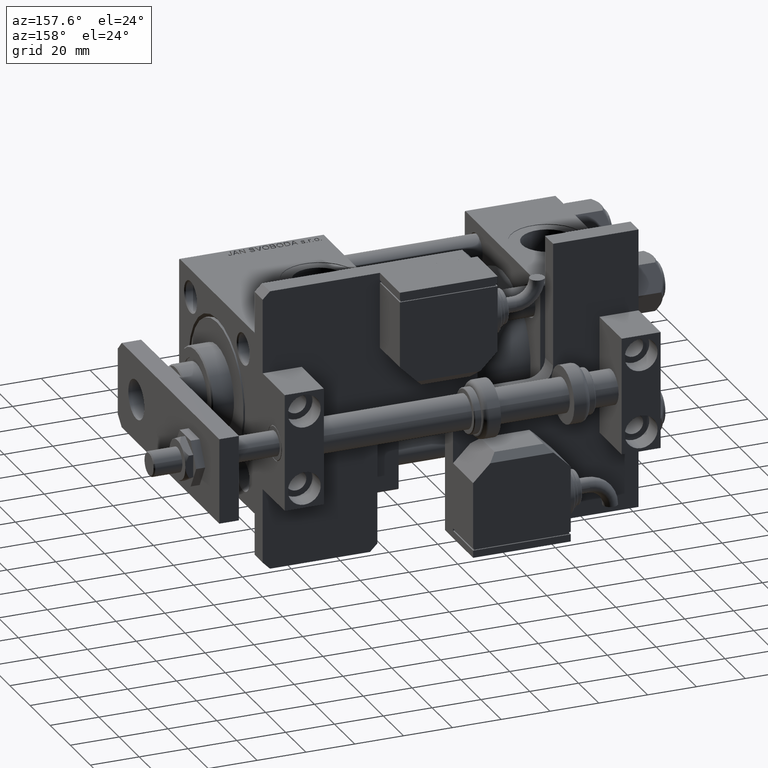
[diagram: clean part render]
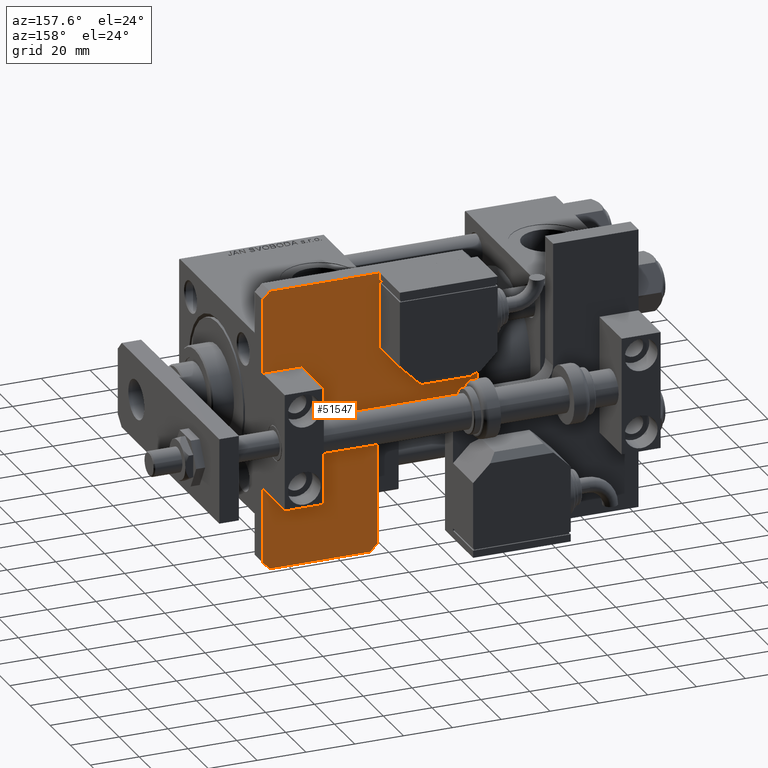
[diagram: same view with one face highlighted and labeled with its STEP entity id]
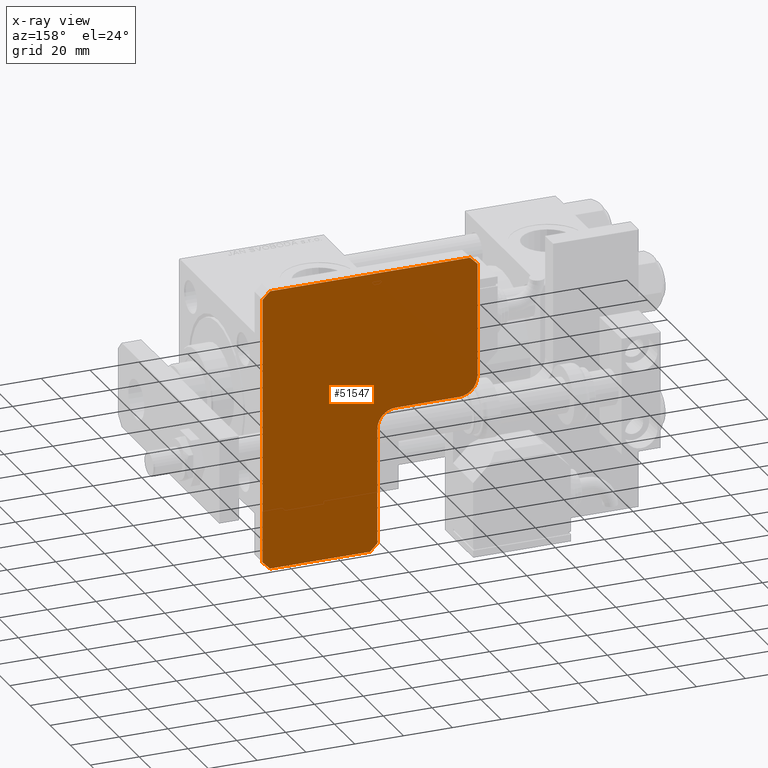
[diagram: x-ray of the same camera — body ghosted, the highlighted face saturated]
A machine part, auxiliary view. The second image highlights one B-rep face of the part: STEP entity #51547.
The next image is the same camera in x-ray: the body ghosted, the highlighted face saturated — about 0% of this face is hidden behind the body in this view.
In plain terms, the highlighted planar face has unit normal (0, 1, 0).
Its self-contained STEP definition (entity closure, byte-faithful):
#1418 = CARTESIAN_POINT ( 'NONE',  ( 0.000000000000000000, 0.000000000000000000, 8.000000000000000000 ) ) ;
#1651 = EDGE_CURVE ( 'NONE', #42852, #24377, #7091, .T. ) ;
#2711 = VECTOR ( 'NONE', #29975, 1000.000000000000114 ) ;
#2737 = CARTESIAN_POINT ( 'NONE',  ( 56.99999999999999289, 88.00000000000000000, 8.000000000000000000 ) ) ;
#3937 = VERTEX_POINT ( 'NONE', #19748 ) ;
#4610 = AXIS2_PLACEMENT_3D ( 'NONE', #55560, #47346, #34662 ) ;
#5080 = VECTOR ( 'NONE', #15692, 1000.000000000000114 ) ;
#7091 = LINE ( 'NONE', #41584, #17776 ) ;
#7131 = VERTEX_POINT ( 'NONE', #30914 ) ;
#7385 = CARTESIAN_POINT ( 'NONE',  ( 114.9999999999999858, 0.000000000000000000, 8.000000000000000000 ) ) ;
#8176 = ORIENTED_EDGE ( 'NONE', *, *, #44047, .T. ) ;
#8759 = DIRECTION ( 'NONE',  ( 1.000000000000000000, 0.000000000000000000, 0.000000000000000000 ) ) ;
#9207 = EDGE_CURVE ( 'NONE', #24204, #42852, #30246, .T. ) ;
#9824 = VECTOR ( 'NONE', #20006, 1000.000000000000000 ) ;
#10546 = EDGE_CURVE ( 'NONE', #19199, #12549, #30460, .T. ) ;
#11227 = VECTOR ( 'NONE', #40761, 1000.000000000000000 ) ;
#11856 = VECTOR ( 'NONE', #22700, 1000.000000000000114 ) ;
#12549 = VERTEX_POINT ( 'NONE', #27171 ) ;
#12624 = CARTESIAN_POINT ( 'NONE',  ( 114.9999999999999858, 43.99999999999998579, 8.000000000000000000 ) ) ;
#13002 = CARTESIAN_POINT ( 'NONE',  ( 0.000000000000000000, 0.000000000000000000, 8.000000000000000000 ) ) ;
#13362 = LINE ( 'NONE', #43056, #54329 ) ;
#13747 = DIRECTION ( 'NONE',  ( -1.000000000000000000, 0.000000000000000000, 0.000000000000000000 ) ) ;
#14166 = EDGE_CURVE ( 'NONE', #37332, #24204, #23973, .T. ) ;
#14400 = EDGE_CURVE ( 'NONE', #24377, #20289, #17413, .T. ) ;
#14440 = DIRECTION ( 'NONE',  ( 1.000000000000000000, 0.000000000000000000, -0.000000000000000000 ) ) ;
#14756 = LINE ( 'NONE', #35146, #11856 ) ;
#15692 = DIRECTION ( 'NONE',  ( -0.7071067811865441310, 0.7071067811865507924, -0.000000000000000000 ) ) ;
#17413 = LINE ( 'NONE', #34672, #40585 ) ;
#17761 = CARTESIAN_POINT ( 'NONE',  ( 2.999999999999975131, 0.000000000000000000, 8.000000000000000000 ) ) ;
#17776 = VECTOR ( 'NONE', #54571, 1000.000000000000000 ) ;
#18160 = ORIENTED_EDGE ( 'NONE', *, *, #9207, .T. ) ;
#18677 = EDGE_CURVE ( 'NONE', #7131, #3937, #14756, .T. ) ;
#19199 = VERTEX_POINT ( 'NONE', #21108 ) ;
#19203 = EDGE_CURVE ( 'NONE', #12549, #23234, #39848, .T. ) ;
#19566 = EDGE_CURVE ( 'NONE', #23234, #55767, #13362, .T. ) ;
#19748 = CARTESIAN_POINT ( 'NONE',  ( 114.9999999999999858, 2.999999999999975131, 8.000000000000000000 ) ) ;
#20006 = DIRECTION ( 'NONE',  ( -1.000000000000000000, 0.000000000000000000, 0.000000000000000000 ) ) ;
#20289 = VERTEX_POINT ( 'NONE', #17761 ) ;
#20957 = ORIENTED_EDGE ( 'NONE', *, *, #14400, .T. ) ;
#21108 = CARTESIAN_POINT ( 'NONE',  ( 112.0000000000000142, 46.99999999999998579, 8.000000000000000000 ) ) ;
#21515 = LINE ( 'NONE', #13002, #22938 ) ;
#22485 = AXIS2_PLACEMENT_3D ( 'NONE', #1418, #53162, #14440 ) ;
#22700 = DIRECTION ( 'NONE',  ( 0.7071067811865507924, 0.7071067811865441310, -0.000000000000000000 ) ) ;
#22938 = VECTOR ( 'NONE', #8759, 1000.000000000000000 ) ;
#23234 = VERTEX_POINT ( 'NONE', #41165 ) ;
#23343 = LINE ( 'NONE', #33510, #5080 ) ;
#23467 = DIRECTION ( 'NONE',  ( 0.000000000000000000, -0.000000000000000000, 1.000000000000000000 ) ) ;
#23659 = VERTEX_POINT ( 'NONE', #12624 ) ;
#23973 = LINE ( 'NONE', #2737, #9824 ) ;
#24204 = VERTEX_POINT ( 'NONE', #50397 ) ;
#24377 = VERTEX_POINT ( 'NONE', #39062 ) ;
#24911 = CIRCLE ( 'NONE', #55562, 7.500000000000000000 ) ;
#25356 = VECTOR ( 'NONE', #13747, 1000.000000000000000 ) ;
#25678 = CARTESIAN_POINT ( 'NONE',  ( 114.9999999999999858, 46.99999999999998579, 8.000000000000000000 ) ) ;
#27171 = CARTESIAN_POINT ( 'NONE',  ( 64.50000000000000000, 46.99999999999998579, 8.000000000000000000 ) ) ;
#29975 = DIRECTION ( 'NONE',  ( -0.7071067811865507924, -0.7071067811865441310, -0.000000000000000000 ) ) ;
#30246 = LINE ( 'NONE', #43772, #2711 ) ;
#30359 = DIRECTION ( 'NONE',  ( 0.000000000000000000, 1.000000000000000000, 0.000000000000000000 ) ) ;
#30460 = LINE ( 'NONE', #25678, #25356 ) ;
#30914 = CARTESIAN_POINT ( 'NONE',  ( 111.9999999999999858, 0.000000000000000000, 8.000000000000000000 ) ) ;
#32511 = DIRECTION ( 'NONE',  ( 1.000000000000000000, 0.000000000000000000, 0.000000000000000000 ) ) ;
#32821 = PLANE ( 'NONE',  #22485 ) ;
#33510 = CARTESIAN_POINT ( 'NONE',  ( 79.50000000000051159, 79.49999999999977263, 8.000000000000000000 ) ) ;
#34021 = ORIENTED_EDGE ( 'NONE', *, *, #45896, .T. ) ;
#34662 = DIRECTION ( 'NONE',  ( 1.000000000000000000, 0.000000000000000000, 0.000000000000000000 ) ) ;
#34672 = CARTESIAN_POINT ( 'NONE',  ( 1.500000000000001332, 1.499999999999987566, 8.000000000000000000 ) ) ;
#35146 = CARTESIAN_POINT ( 'NONE',  ( 55.99999999999947420, -55.99999999999999289, 8.000000000000000000 ) ) ;
#36546 = ORIENTED_EDGE ( 'NONE', *, *, #18677, .T. ) ;
#36781 = FACE_OUTER_BOUND ( 'NONE', #49305, .T. ) ;
#37038 = CARTESIAN_POINT ( 'NONE',  ( 49.49999999999999289, 80.49999999999998579, 8.000000000000000000 ) ) ;
#37332 = VERTEX_POINT ( 'NONE', #49061 ) ;
#39062 = CARTESIAN_POINT ( 'NONE',  ( 0.000000000000000000, 3.000000000000002665, 8.000000000000000000 ) ) ;
#39302 = ORIENTED_EDGE ( 'NONE', *, *, #40930, .T. ) ;
#39848 = CIRCLE ( 'NONE', #4610, 7.500000000000007105 ) ;
#40300 = EDGE_CURVE ( 'NONE', #20289, #7131, #21515, .T. ) ;
#40582 = ORIENTED_EDGE ( 'NONE', *, *, #1651, .T. ) ;
#40585 = VECTOR ( 'NONE', #51888, 1000.000000000000114 ) ;
#40761 = DIRECTION ( 'NONE',  ( 0.000000000000000000, 1.000000000000000000, 0.000000000000000000 ) ) ;
#40930 = EDGE_CURVE ( 'NONE', #3937, #23659, #46102, .T. ) ;
#41165 = CARTESIAN_POINT ( 'NONE',  ( 56.99999999999999289, 54.49999999999998579, 8.000000000000000000 ) ) ;
#41584 = CARTESIAN_POINT ( 'NONE',  ( 0.000000000000000000, 88.00000000000000000, 8.000000000000000000 ) ) ;
#42852 = VERTEX_POINT ( 'NONE', #51414 ) ;
#43056 = CARTESIAN_POINT ( 'NONE',  ( 56.99999999999999289, 46.99999999999998579, 8.000000000000000000 ) ) ;
#43772 = CARTESIAN_POINT ( 'NONE',  ( -42.50000000000000711, 42.50000000000040501, 8.000000000000000000 ) ) ;
#44047 = EDGE_CURVE ( 'NONE', #55767, #37332, #24911, .T. ) ;
#45646 = ORIENTED_EDGE ( 'NONE', *, *, #14166, .T. ) ;
#45896 = EDGE_CURVE ( 'NONE', #23659, #19199, #23343, .T. ) ;
#46102 = LINE ( 'NONE', #7385, #11227 ) ;
#47346 = DIRECTION ( 'NONE',  ( -0.000000000000000000, 0.000000000000000000, -1.000000000000000000 ) ) ;
#47977 = ORIENTED_EDGE ( 'NONE', *, *, #10546, .T. ) ;
#49061 = CARTESIAN_POINT ( 'NONE',  ( 49.49999999999999289, 88.00000000000000000, 8.000000000000000000 ) ) ;
#49212 = ORIENTED_EDGE ( 'NONE', *, *, #19566, .T. ) ;
#49305 = EDGE_LOOP ( 'NONE', ( #45646, #18160, #40582, #20957, #51755, #36546, #39302, #34021, #47977, #53133, #49212, #8176 ) ) ;
#50397 = CARTESIAN_POINT ( 'NONE',  ( 3.000000000000002665, 88.00000000000000000, 8.000000000000000000 ) ) ;
#51414 = CARTESIAN_POINT ( 'NONE',  ( 0.000000000000000000, 85.00000000000001421, 8.000000000000000000 ) ) ;
#51547 = ADVANCED_FACE ( 'NONE', ( #36781 ), #32821, .T. ) ;
#51755 = ORIENTED_EDGE ( 'NONE', *, *, #40300, .T. ) ;
#51888 = DIRECTION ( 'NONE',  ( 0.7071067811865441310, -0.7071067811865507924, -0.000000000000000000 ) ) ;
#53133 = ORIENTED_EDGE ( 'NONE', *, *, #19203, .T. ) ;
#53162 = DIRECTION ( 'NONE',  ( 0.000000000000000000, -0.000000000000000000, 1.000000000000000000 ) ) ;
#54329 = VECTOR ( 'NONE', #30359, 1000.000000000000000 ) ;
#54571 = DIRECTION ( 'NONE',  ( 0.000000000000000000, -1.000000000000000000, 0.000000000000000000 ) ) ;
#55112 = CARTESIAN_POINT ( 'NONE',  ( 56.99999999999999289, 80.49999999999997158, 8.000000000000000000 ) ) ;
#55560 = CARTESIAN_POINT ( 'NONE',  ( 64.50000000000000000, 54.49999999999998579, 8.000000000000000000 ) ) ;
#55562 = AXIS2_PLACEMENT_3D ( 'NONE', #37038, #23467, #32511 ) ;
#55767 = VERTEX_POINT ( 'NONE', #55112 ) ;